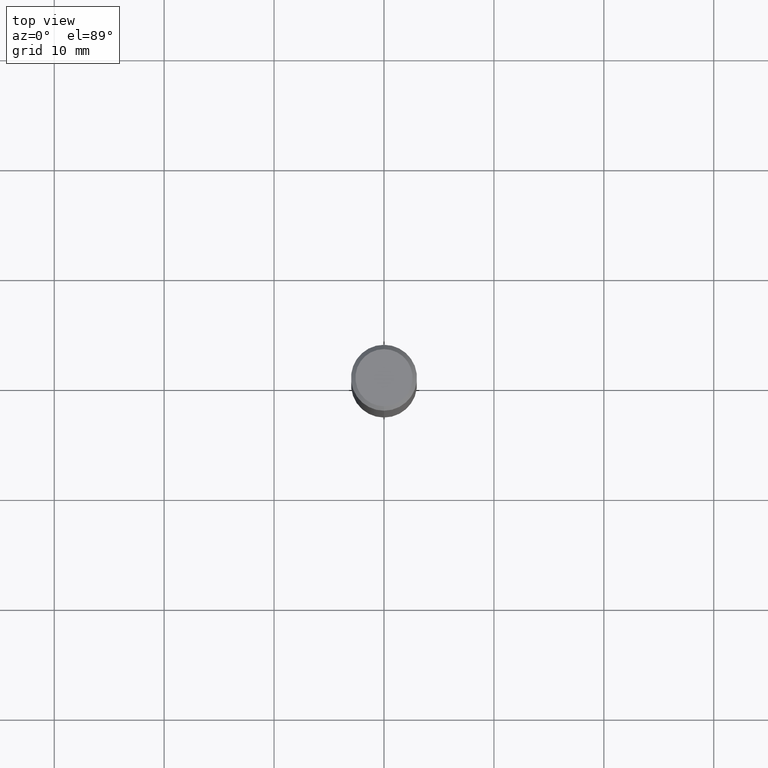
[diagram: clean part render]
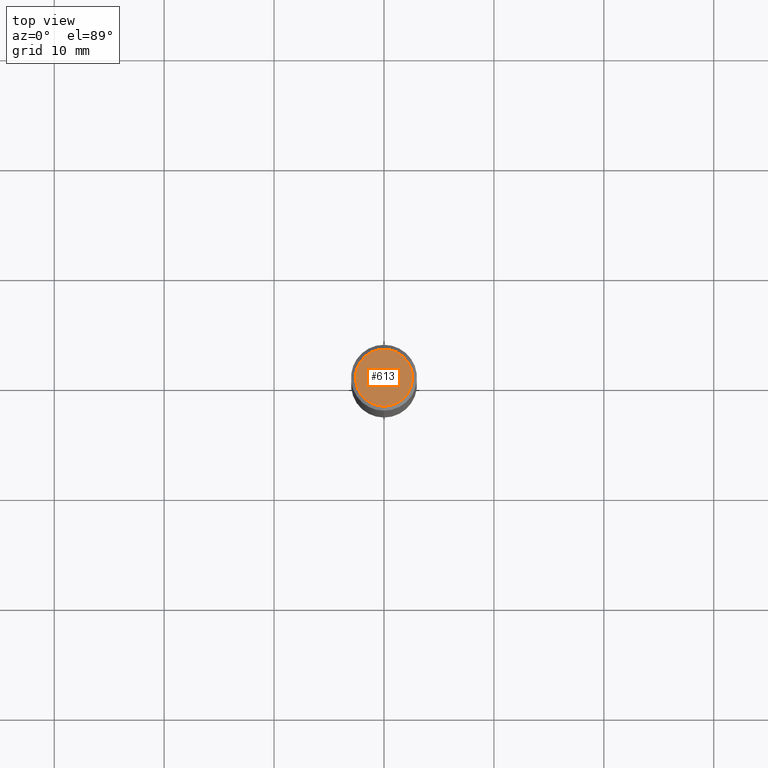
[diagram: same view with one face highlighted and labeled with its STEP entity id]
A machine part, top view. The second image highlights one B-rep face of the part: STEP entity #613.
In plain terms, the highlighted planar face has unit normal (-0, 0, 1).
Its self-contained STEP definition (entity closure, byte-faithful):
#391=VERTEX_POINT('',#924);
#471=EDGE_CURVE('',#573,#391,#1014,.T.);
#573=VERTEX_POINT('',#1125);
#613=ADVANCED_FACE('',(#1167),#1168,.T.);
#669=EDGE_CURVE('',#391,#573,#1231,.T.);
#924=CARTESIAN_POINT('',(0.0,2.6,0.0));
#1014=CIRCLE('',#3183,2.6);
#1125=CARTESIAN_POINT('',(3.18397651993818E-016,-2.6,0.0));
#1167=FACE_OUTER_BOUND('',#5285,.T.);
#1168=PLANE('',#5286);
#1231=CIRCLE('',#6061,2.6);
#3183=AXIS2_PLACEMENT_3D('',#7201,#7202,#7203);
#5285=EDGE_LOOP('',(#7328,#7329));
#5286=AXIS2_PLACEMENT_3D('',#7330,#7331,#7332);
#6061=AXIS2_PLACEMENT_3D('',#7411,#7412,#7413);
#7201=CARTESIAN_POINT('',(0.0,0.0,0.0));
#7202=DIRECTION('',(0.0,0.0,-1.0));
#7203=DIRECTION('',(0.0,1.0,0.0));
#7328=ORIENTED_EDGE('',*,*,#669,.F.);
#7329=ORIENTED_EDGE('',*,*,#471,.F.);
#7330=CARTESIAN_POINT('',(0.0,1.3,0.0));
#7331=DIRECTION('',(-0.0,0.0,1.0));
#7332=DIRECTION('',(0.0,-1.0,0.0));
#7411=CARTESIAN_POINT('',(0.0,0.0,0.0));
#7412=DIRECTION('',(0.0,0.0,-1.0));
#7413=DIRECTION('',(0.0,1.0,0.0));